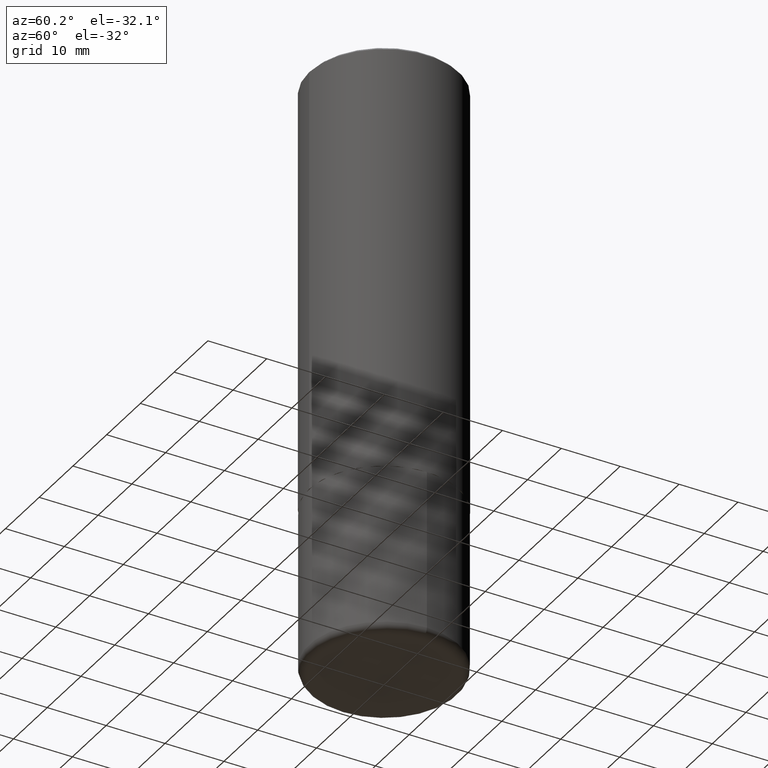
[diagram: clean part render]
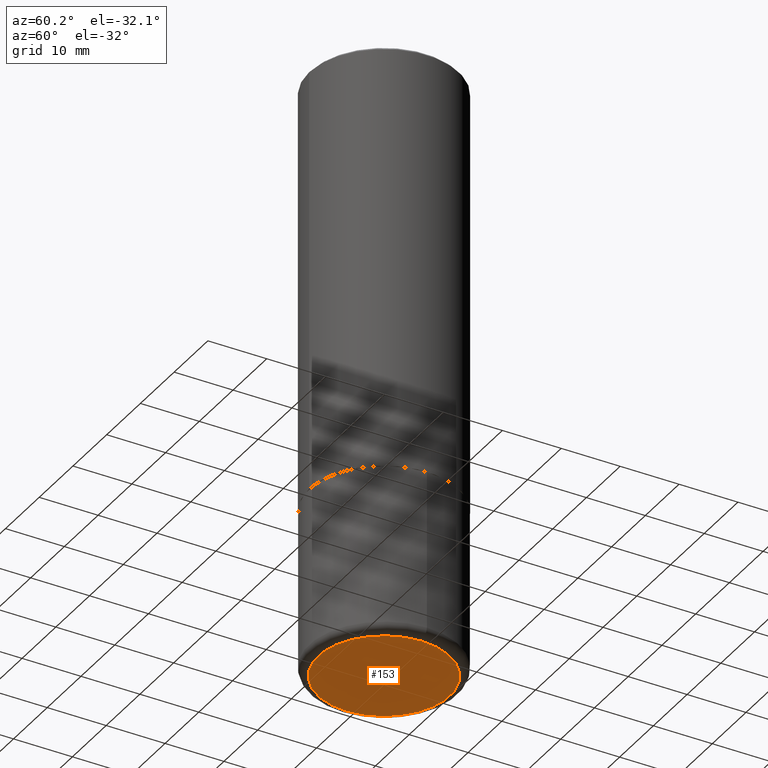
[diagram: same view with one face highlighted and labeled with its STEP entity id]
A machine part, auxiliary view. The second image highlights one B-rep face of the part: STEP entity #153.
In plain terms, the highlighted planar face has unit normal (0, -0, -1).
Its self-contained STEP definition (entity closure, byte-faithful):
#1 = ORIENTED_EDGE ( 'NONE', *, *, #396, .F. ) ;
#11 = CARTESIAN_POINT ( 'NONE',  ( 9.781875224740547508E-29, -1.396592535537258391E-14, -4.000000000000000888 ) ) ;
#13 = DIRECTION ( 'NONE',  ( 1.000000000000000000, -6.982962677686266711E-15, 0.000000000000000000 ) ) ;
#28 = CIRCLE ( 'NONE', #196, 0.4400000000000000022 ) ;
#46 = CARTESIAN_POINT ( 'NONE',  ( -0.4400000000000000022, -1.052163005713481670E-14, -4.000000000000000888 ) ) ;
#47 = DIRECTION ( 'NONE',  ( 2.438088387897960049E-29, -3.491481338843145188E-15, -1.000000000000000000 ) ) ;
#55 = DIRECTION ( 'NONE',  ( 1.000000000000000000, -6.982962677686266711E-15, 0.000000000000000000 ) ) ;
#88 = VERTEX_POINT ( 'NONE', #300 ) ;
#114 = CARTESIAN_POINT ( 'NONE',  ( 9.781875224740547508E-29, -1.396592535537258391E-14, -4.000000000000000888 ) ) ;
#153 = ADVANCED_FACE ( 'NONE', ( #333 ), #202, .T. ) ;
#179 = EDGE_CURVE ( 'NONE', #218, #88, #28, .T. ) ;
#181 = ORIENTED_EDGE ( 'NONE', *, *, #179, .F. ) ;
#196 = AXIS2_PLACEMENT_3D ( 'NONE', #11, #295, #13 ) ;
#202 = PLANE ( 'NONE',  #377 ) ;
#218 = VERTEX_POINT ( 'NONE', #46 ) ;
#242 = DIRECTION ( 'NONE',  ( -2.445468806185136597E-29, 3.491481338843145583E-15, 1.000000000000000000 ) ) ;
#247 = AXIS2_PLACEMENT_3D ( 'NONE', #114, #242, #55 ) ;
#266 = CARTESIAN_POINT ( 'NONE',  ( 6.313440210036972125E-29, -1.893292170748942541E-14, -4.000000000000000000 ) ) ;
#286 = EDGE_LOOP ( 'NONE', ( #1, #181 ) ) ;
#295 = DIRECTION ( 'NONE',  ( -2.445468806185136597E-29, 3.491481338843145583E-15, 1.000000000000000000 ) ) ;
#297 = DIRECTION ( 'NONE',  ( -1.000000000000000000, 6.982962677686265922E-15, -4.876176775795935793E-29 ) ) ;
#300 = CARTESIAN_POINT ( 'NONE',  ( 0.4400000000000000022, -1.703842893355454063E-14, -4.000000000000000888 ) ) ;
#325 = CIRCLE ( 'NONE', #247, 0.4400000000000000022 ) ;
#333 = FACE_OUTER_BOUND ( 'NONE', #286, .T. ) ;
#377 = AXIS2_PLACEMENT_3D ( 'NONE', #266, #47, #297 ) ;
#396 = EDGE_CURVE ( 'NONE', #88, #218, #325, .T. ) ;